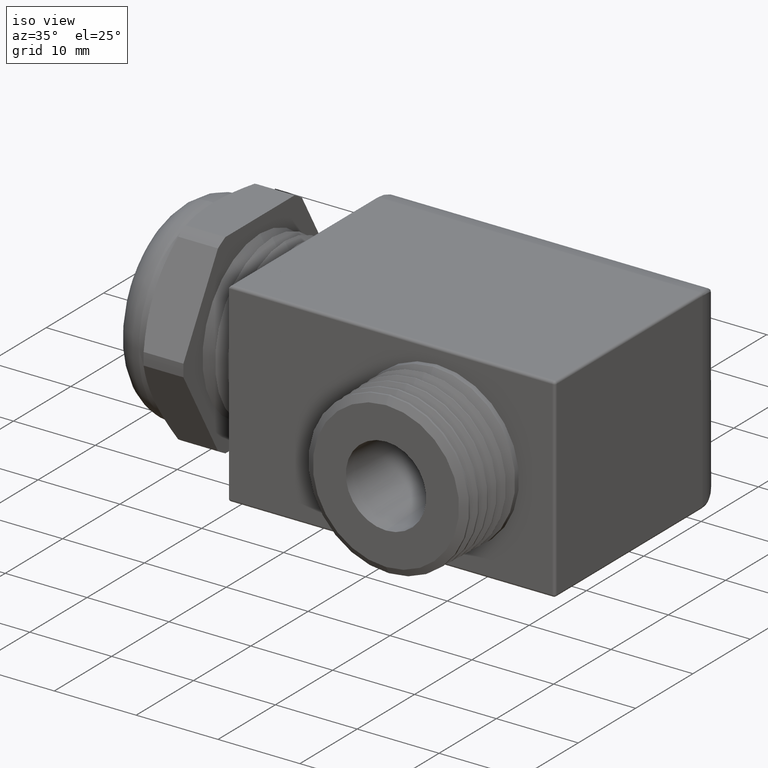
[diagram: clean part render]
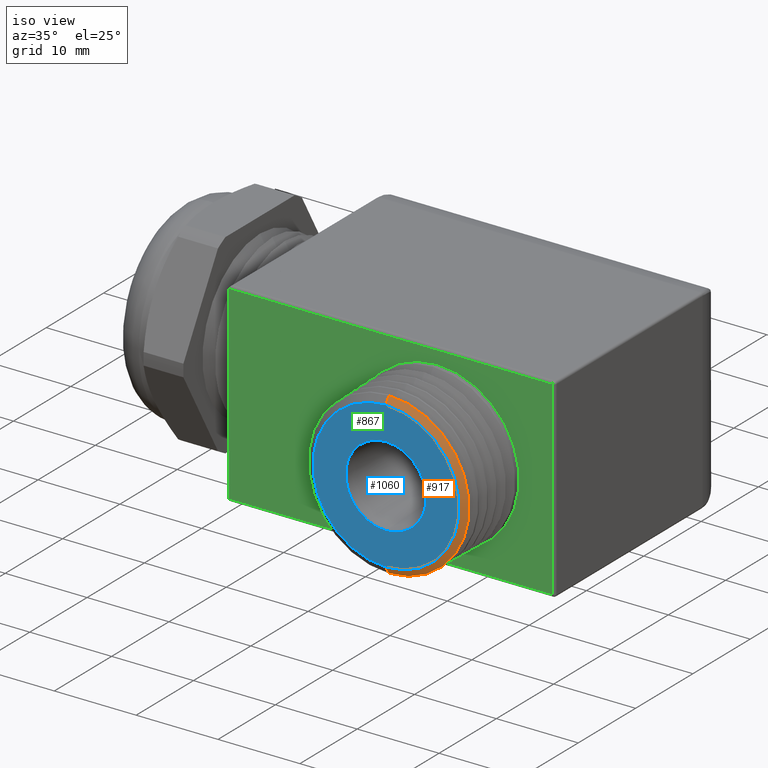
[diagram: same view with three faces highlighted in distinct colors, each labeled with its STEP entity id]
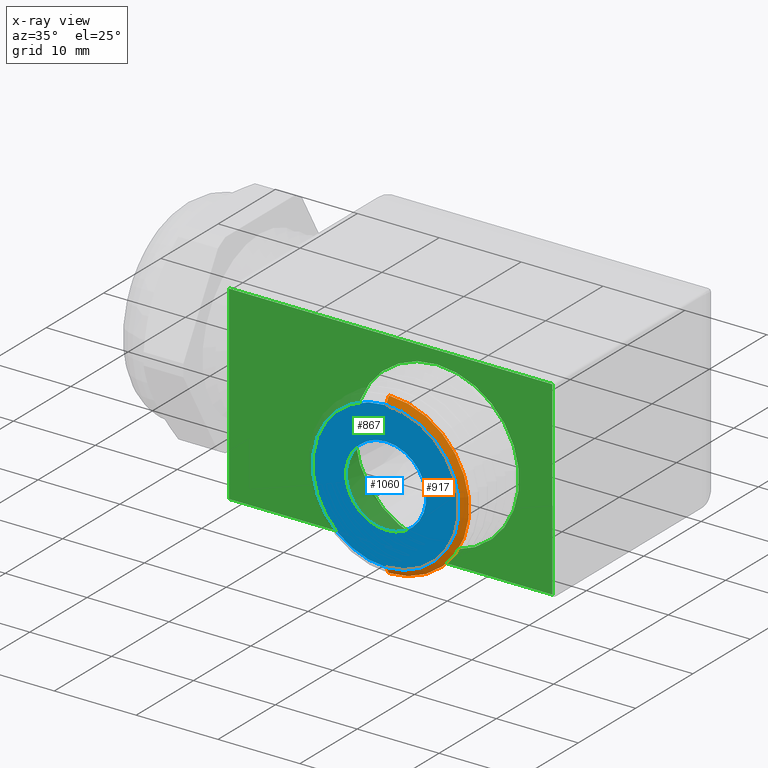
[diagram: x-ray of the same camera — body ghosted, the three highlighted faces saturated]
A machine part, iso view with three faces highlighted in distinct colors.
The next image is the same camera in x-ray (body ghosted, the three faces saturated) — at least one of them is partly hidden behind the body in this view.
Their STEP definitions:

[orange] entity #917 — the highlighted conical surface has half-angle 60 deg.
#764 = ORIENTED_EDGE ( 'NONE', *, *, #765, .F. ) ;
#765 = EDGE_CURVE ( 'NONE', #811, #810, #2799, .T. ) ;
#807 = VERTEX_POINT ( 'NONE', #3006 ) ;
#808 = ORIENTED_EDGE ( 'NONE', *, *, #809, .T. ) ;
#809 = EDGE_CURVE ( 'NONE', #807, #810, #3066, .T. ) ;
#810 = VERTEX_POINT ( 'NONE', #3033 ) ;
#811 = VERTEX_POINT ( 'NONE', #3032 ) ;
#812 = VERTEX_POINT ( 'NONE', #3157 ) ;
#813 = ORIENTED_EDGE ( 'NONE', *, *, #814, .T. ) ;
#814 = EDGE_CURVE ( 'NONE', #812, #807, #3104, .T. ) ;
#915 = EDGE_LOOP ( 'NONE', ( #918, #813, #808, #764 ) ) ;
#917 = ADVANCED_FACE ( 'NONE', ( #3160 ), #3158, .T. ) ;
#918 = ORIENTED_EDGE ( 'NONE', *, *, #919, .T. ) ;
#919 = EDGE_CURVE ( 'NONE', #811, #812, #3050, .T. ) ;
#2796 = DIRECTION ( 'NONE',  ( 0.0000000000000000000, 0.5000000000000012200, 0.8660254037844379300 ) ) ;
#2797 = VECTOR ( 'NONE', #2796, 39.37007874015748100 ) ;
#2798 = CARTESIAN_POINT ( 'NONE',  ( 1.000155367231638300, -0.9559709431788044900, 0.3415681302205366100 ) ) ;
#2799 = LINE ( 'NONE', #2798, #2797 ) ;
#3006 = CARTESIAN_POINT ( 'NONE',  ( 1.000155367231638600, -0.9301128327607425300, -0.3863556912523459800 ) ) ;
#3032 = CARTESIAN_POINT ( 'NONE',  ( 1.000155367231638300, -0.9499999999999999600, 0.3519101071753327800 ) ) ;
#3033 = CARTESIAN_POINT ( 'NONE',  ( 1.000155367231638300, -0.9301128327607425300, 0.3863556912523459800 ) ) ;
#3043 = DIRECTION ( 'NONE',  ( 0.0000000000000000000, 0.0000000000000000000, -1.000000000000000000 ) ) ;
#3044 = DIRECTION ( 'NONE',  ( 0.0000000000000000000, 1.000000000000000000, 0.0000000000000000000 ) ) ;
#3045 = CARTESIAN_POINT ( 'NONE',  ( 1.000155367231638300, -0.9499999999999999600, 0.0000000000000000000 ) ) ;
#3046 = AXIS2_PLACEMENT_3D ( 'NONE', #3045, #3044, #3043 ) ;
#3047 = DIRECTION ( 'NONE',  ( 0.0000000000000000000, 0.0000000000000000000, 1.000000000000000000 ) ) ;
#3048 = DIRECTION ( 'NONE',  ( 0.0000000000000000000, 1.000000000000000000, 0.0000000000000000000 ) ) ;
#3049 = AXIS2_PLACEMENT_3D ( 'NONE', #3159, #3048, #3047 ) ;
#3050 = CIRCLE ( 'NONE', #3046, 0.3519101071753327800 ) ;
#3062 = DIRECTION ( 'NONE',  ( 1.060575238724906100E-016, 0.5000000000000012200, -0.8660254037844379300 ) ) ;
#3063 = DIRECTION ( 'NONE',  ( 0.0000000000000000000, 0.0000000000000000000, 1.000000000000000000 ) ) ;
#3064 = DIRECTION ( 'NONE',  ( 0.0000000000000000000, -1.000000000000000000, 0.0000000000000000000 ) ) ;
#3065 = AXIS2_PLACEMENT_3D ( 'NONE', #3082, #3064, #3063 ) ;
#3066 = CIRCLE ( 'NONE', #3065, 0.3863556912523459800 ) ;
#3082 = CARTESIAN_POINT ( 'NONE',  ( 1.000155367231638300, -0.9301128327607425300, 0.0000000000000000000 ) ) ;
#3102 = VECTOR ( 'NONE', #3062, 39.37007874015748100 ) ;
#3103 = CARTESIAN_POINT ( 'NONE',  ( 1.000155367231638300, -0.9559709431788044900, -0.3415681302205366100 ) ) ;
#3104 = LINE ( 'NONE', #3103, #3102 ) ;
#3157 = CARTESIAN_POINT ( 'NONE',  ( 1.000155367231638300, -0.9499999999999999600, -0.3519101071753327800 ) ) ;
#3158 = CONICAL_SURFACE ( 'NONE', #3049, 0.3415681302205366100, 1.047197551196596300 ) ;
#3159 = CARTESIAN_POINT ( 'NONE',  ( 1.000155367231638300, -0.9559709431788044900, 0.0000000000000000000 ) ) ;
#3160 = FACE_OUTER_BOUND ( 'NONE', #915, .T. ) ;

[blue] entity #1060 — the highlighted planar face has unit normal (0, -1, 0).
#811 = VERTEX_POINT ( 'NONE', #3032 ) ;
#812 = VERTEX_POINT ( 'NONE', #3157 ) ;
#886 = EDGE_CURVE ( 'NONE', #812, #811, #3122, .T. ) ;
#919 = EDGE_CURVE ( 'NONE', #811, #812, #3050, .T. ) ;
#1060 = ADVANCED_FACE ( 'NONE', ( #3410, #3406 ), #3452, .T. ) ;
#1061 = ORIENTED_EDGE ( 'NONE', *, *, #919, .F. ) ;
#1062 = EDGE_CURVE ( 'NONE', #1371, #1483, #3498, .T. ) ;
#1063 = EDGE_LOOP ( 'NONE', ( #1061, #1064 ) ) ;
#1064 = ORIENTED_EDGE ( 'NONE', *, *, #886, .F. ) ;
#1065 = EDGE_LOOP ( 'NONE', ( #1073, #1066 ) ) ;
#1066 = ORIENTED_EDGE ( 'NONE', *, *, #1062, .T. ) ;
#1073 = ORIENTED_EDGE ( 'NONE', *, *, #1482, .T. ) ;
#1371 = VERTEX_POINT ( 'NONE', #4107 ) ;
#1482 = EDGE_CURVE ( 'NONE', #1483, #1371, #4171, .T. ) ;
#1483 = VERTEX_POINT ( 'NONE', #4166 ) ;
#3032 = CARTESIAN_POINT ( 'NONE',  ( 1.000155367231638300, -0.9499999999999999600, 0.3519101071753327800 ) ) ;
#3043 = DIRECTION ( 'NONE',  ( 0.0000000000000000000, 0.0000000000000000000, -1.000000000000000000 ) ) ;
#3044 = DIRECTION ( 'NONE',  ( 0.0000000000000000000, 1.000000000000000000, 0.0000000000000000000 ) ) ;
#3045 = CARTESIAN_POINT ( 'NONE',  ( 1.000155367231638300, -0.9499999999999999600, 0.0000000000000000000 ) ) ;
#3046 = AXIS2_PLACEMENT_3D ( 'NONE', #3045, #3044, #3043 ) ;
#3050 = CIRCLE ( 'NONE', #3046, 0.3519101071753327800 ) ;
#3118 = DIRECTION ( 'NONE',  ( 0.0000000000000000000, 0.0000000000000000000, -1.000000000000000000 ) ) ;
#3119 = DIRECTION ( 'NONE',  ( 0.0000000000000000000, 1.000000000000000000, 0.0000000000000000000 ) ) ;
#3120 = CARTESIAN_POINT ( 'NONE',  ( 1.000155367231638300, -0.9499999999999999600, 0.0000000000000000000 ) ) ;
#3121 = AXIS2_PLACEMENT_3D ( 'NONE', #3120, #3119, #3118 ) ;
#3122 = CIRCLE ( 'NONE', #3121, 0.3519101071753327800 ) ;
#3157 = CARTESIAN_POINT ( 'NONE',  ( 1.000155367231638300, -0.9499999999999999600, -0.3519101071753327800 ) ) ;
#3406 = FACE_BOUND ( 'NONE', #1065, .T. ) ;
#3410 = FACE_OUTER_BOUND ( 'NONE', #1063, .T. ) ;
#3451 = AXIS2_PLACEMENT_3D ( 'NONE', #3459, #3458, #3457 ) ;
#3452 = PLANE ( 'NONE',  #3451 ) ;
#3453 = CARTESIAN_POINT ( 'NONE',  ( 1.000155367231638600, -0.9499999999999999600, -2.785979454945908300E-017 ) ) ;
#3457 = DIRECTION ( 'NONE',  ( 0.0000000000000000000, 0.0000000000000000000, -1.000000000000000000 ) ) ;
#3458 = DIRECTION ( 'NONE',  ( 0.0000000000000000000, -1.000000000000000000, 0.0000000000000000000 ) ) ;
#3459 = CARTESIAN_POINT ( 'NONE',  ( 1.193498089980702800, -0.9499999999999999600, -2.785979454945908300E-017 ) ) ;
#3495 = DIRECTION ( 'NONE',  ( 0.0000000000000000000, 0.0000000000000000000, 1.000000000000000000 ) ) ;
#3496 = DIRECTION ( 'NONE',  ( 0.0000000000000000000, 1.000000000000000000, 0.0000000000000000000 ) ) ;
#3497 = AXIS2_PLACEMENT_3D ( 'NONE', #3453, #3496, #3495 ) ;
#3498 = CIRCLE ( 'NONE', #3497, 0.1933427227490643600 ) ;
#4107 = CARTESIAN_POINT ( 'NONE',  ( 1.000155367231638600, -0.9499999999999999600, 0.1933427227490643300 ) ) ;
#4166 = CARTESIAN_POINT ( 'NONE',  ( 1.000155367231638600, -0.9499999999999999600, -0.1933427227490644200 ) ) ;
#4167 = DIRECTION ( 'NONE',  ( 0.0000000000000000000, 0.0000000000000000000, 1.000000000000000000 ) ) ;
#4168 = DIRECTION ( 'NONE',  ( 0.0000000000000000000, 1.000000000000000000, 0.0000000000000000000 ) ) ;
#4169 = CARTESIAN_POINT ( 'NONE',  ( 1.000155367231638600, -0.9499999999999999600, -2.785979454945908300E-017 ) ) ;
#4170 = AXIS2_PLACEMENT_3D ( 'NONE', #4169, #4168, #4167 ) ;
#4171 = CIRCLE ( 'NONE', #4170, 0.1933427227490643600 ) ;

[green] entity #867 — the highlighted planar face has unit normal (0, -1, 0).
#842 = EDGE_CURVE ( 'NONE', #1052, #879, #3088, .T. ) ;
#861 = ORIENTED_EDGE ( 'NONE', *, *, #842, .T. ) ;
#864 = EDGE_CURVE ( 'NONE', #878, #1053, #3101, .T. ) ;
#865 = ORIENTED_EDGE ( 'NONE', *, *, #1047, .T. ) ;
#867 = ADVANCED_FACE ( 'NONE', ( #3097, #3096 ), #3095, .T. ) ;
#868 = EDGE_LOOP ( 'NONE', ( #870, #872 ) ) ;
#870 = ORIENTED_EDGE ( 'NONE', *, *, #1145, .F. ) ;
#872 = ORIENTED_EDGE ( 'NONE', *, *, #1375, .F. ) ;
#873 = EDGE_LOOP ( 'NONE', ( #874, #880, #865, #861 ) ) ;
#874 = ORIENTED_EDGE ( 'NONE', *, *, #875, .F. ) ;
#875 = EDGE_CURVE ( 'NONE', #878, #879, #3151, .T. ) ;
#878 = VERTEX_POINT ( 'NONE', #3124 ) ;
#879 = VERTEX_POINT ( 'NONE', #3123 ) ;
#880 = ORIENTED_EDGE ( 'NONE', *, *, #864, .T. ) ;
#1047 = EDGE_CURVE ( 'NONE', #1053, #1052, #3346, .T. ) ;
#1052 = VERTEX_POINT ( 'NONE', #3500 ) ;
#1053 = VERTEX_POINT ( 'NONE', #3455 ) ;
#1145 = EDGE_CURVE ( 'NONE', #1376, #1518, #3594, .T. ) ;
#1375 = EDGE_CURVE ( 'NONE', #1518, #1376, #4047, .T. ) ;
#1376 = VERTEX_POINT ( 'NONE', #4135 ) ;
#1518 = VERTEX_POINT ( 'NONE', #4140 ) ;
#3037 = CARTESIAN_POINT ( 'NONE',  ( 1.653661013113960600E-018, -0.6000000000000002000, 0.4573446327683616300 ) ) ;
#3088 = LINE ( 'NONE', #3037, #3134 ) ;
#3094 = AXIS2_PLACEMENT_3D ( 'NONE', #3154, #3153, #3152 ) ;
#3095 = PLANE ( 'NONE',  #3094 ) ;
#3096 = FACE_OUTER_BOUND ( 'NONE', #873, .T. ) ;
#3097 = FACE_BOUND ( 'NONE', #868, .T. ) ;
#3098 = DIRECTION ( 'NONE',  ( 1.000000000000000000, 1.306687496969513600E-016, 0.0000000000000000000 ) ) ;
#3099 = VECTOR ( 'NONE', #3098, 39.37007874015748100 ) ;
#3100 = CARTESIAN_POINT ( 'NONE',  ( 1.568000000000000300, -0.5999999999999999800, -0.4573446327683616300 ) ) ;
#3101 = LINE ( 'NONE', #3100, #3099 ) ;
#3123 = CARTESIAN_POINT ( 'NONE',  ( 1.665464641198555300E-017, -0.6000000000000002000, 0.4573446327683599600 ) ) ;
#3124 = CARTESIAN_POINT ( 'NONE',  ( 1.665464641198555300E-017, -0.6000000000000002000, -0.4573446327683624600 ) ) ;
#3133 = DIRECTION ( 'NONE',  ( -1.000000000000000000, -1.306687496969513600E-016, 0.0000000000000000000 ) ) ;
#3134 = VECTOR ( 'NONE', #3133, 39.37007874015748100 ) ;
#3148 = DIRECTION ( 'NONE',  ( 0.0000000000000000000, 0.0000000000000000000, 1.000000000000000000 ) ) ;
#3149 = VECTOR ( 'NONE', #3148, 39.37007874015748100 ) ;
#3150 = CARTESIAN_POINT ( 'NONE',  ( 1.665464641198555300E-017, -0.6000000000000002000, -2.444493352736341900 ) ) ;
#3151 = LINE ( 'NONE', #3150, #3149 ) ;
#3152 = DIRECTION ( 'NONE',  ( 1.000000000000000000, 1.306687496969513600E-016, 0.0000000000000000000 ) ) ;
#3153 = DIRECTION ( 'NONE',  ( 1.306687496969513600E-016, -1.000000000000000000, 0.0000000000000000000 ) ) ;
#3154 = CARTESIAN_POINT ( 'NONE',  ( 1.568000000000000300, -0.5999999999999999800, -2.444493352736341900 ) ) ;
#3343 = DIRECTION ( 'NONE',  ( 0.0000000000000000000, 0.0000000000000000000, 1.000000000000000000 ) ) ;
#3344 = VECTOR ( 'NONE', #3343, 39.37007874015748100 ) ;
#3345 = CARTESIAN_POINT ( 'NONE',  ( 1.555344632768362000, -0.5999999999999999800, -2.444493352736341900 ) ) ;
#3346 = LINE ( 'NONE', #3345, #3344 ) ;
#3455 = CARTESIAN_POINT ( 'NONE',  ( 1.555344632768362000, -0.5999999999999999800, -0.4573446327683616300 ) ) ;
#3500 = CARTESIAN_POINT ( 'NONE',  ( 1.555344632768362000, -0.5999999999999999800, 0.4573446327683616300 ) ) ;
#3591 = DIRECTION ( 'NONE',  ( 1.000000000000000000, 1.729017717509027700E-016, 0.0000000000000000000 ) ) ;
#3592 = DIRECTION ( 'NONE',  ( 1.306687496969513600E-016, -1.000000000000000000, 0.0000000000000000000 ) ) ;
#3593 = AXIS2_PLACEMENT_3D ( 'NONE', #3600, #3592, #3591 ) ;
#3594 = CIRCLE ( 'NONE', #3593, 0.3949999999999999100 ) ;
#3600 = CARTESIAN_POINT ( 'NONE',  ( 1.000155367231638600, -0.5999999999999999800, -2.785979454945908300E-017 ) ) ;
#4045 = CARTESIAN_POINT ( 'NONE',  ( 1.000155367231638600, -0.5999999999999999800, -2.785979454945908300E-017 ) ) ;
#4046 = AXIS2_PLACEMENT_3D ( 'NONE', #4045, #4137, #4136 ) ;
#4047 = CIRCLE ( 'NONE', #4046, 0.3949999999999999100 ) ;
#4135 = CARTESIAN_POINT ( 'NONE',  ( 1.000155367231638600, -0.5999999999999999800, 0.3949999999999999100 ) ) ;
#4136 = DIRECTION ( 'NONE',  ( 1.000000000000000000, 1.729017717509027700E-016, 0.0000000000000000000 ) ) ;
#4137 = DIRECTION ( 'NONE',  ( 1.306687496969513600E-016, -1.000000000000000000, 0.0000000000000000000 ) ) ;
#4140 = CARTESIAN_POINT ( 'NONE',  ( 1.000155367231638600, -0.5999999999999999800, -0.3949999999999999100 ) ) ;